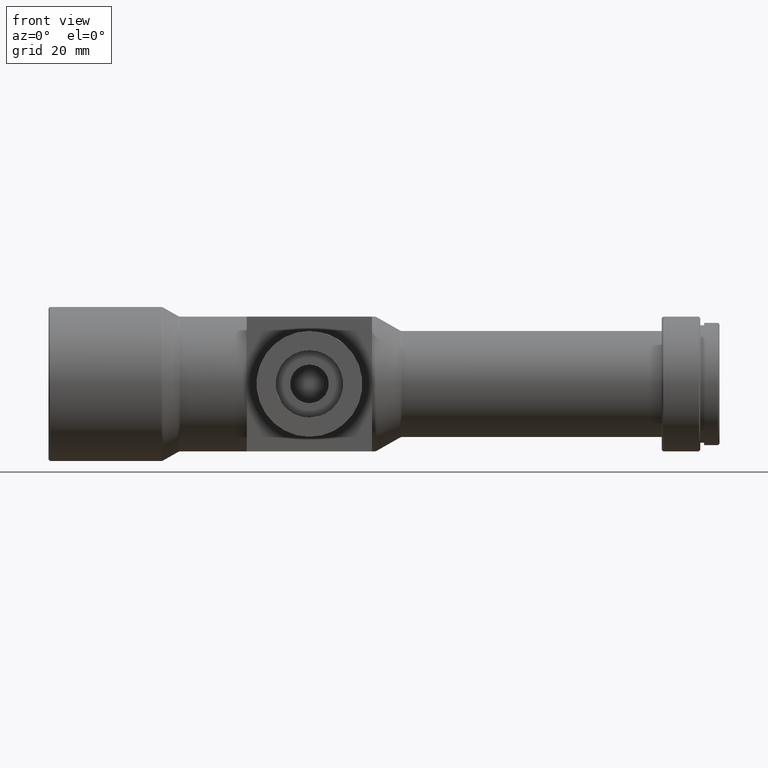
[diagram: clean part render]
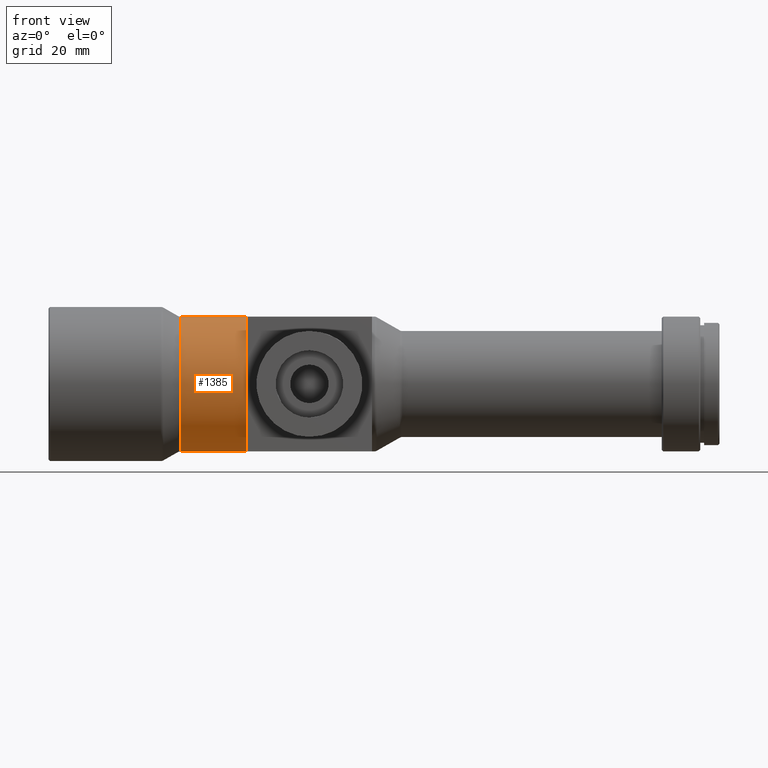
[diagram: same view with one face highlighted and labeled with its STEP entity id]
A machine part, front view. The second image highlights one B-rep face of the part: STEP entity #1385.
In plain terms, the highlighted cylindrical surface (partial cylindrical patch) has radius 14 mm, axis along (-1, -0, -0).
Its self-contained STEP definition (entity closure, byte-faithful):
#22 = CARTESIAN_POINT ( 'NONE',  ( 0.0000000000000000000, 0.0000000000000000000, 14.00000000000000000 ) ) ;
#26 = CARTESIAN_POINT ( 'NONE',  ( 27.39999999999999900, 0.0000000000000000000, 0.0000000000000000000 ) ) ;
#47 = EDGE_CURVE ( 'NONE', #542, #762, #419, .T. ) ;
#48 = DIRECTION ( 'NONE',  ( -1.000000000000000000, -0.0000000000000000000, -0.0000000000000000000 ) ) ;
#249 = DIRECTION ( 'NONE',  ( 1.000000000000000000, 0.0000000000000000000, 0.0000000000000000000 ) ) ;
#277 = CIRCLE ( 'NONE', #1046, 14.00000000000000000 ) ;
#313 = EDGE_CURVE ( 'NONE', #542, #1856, #277, .T. ) ;
#316 = VERTEX_POINT ( 'NONE', #850 ) ;
#332 = DIRECTION ( 'NONE',  ( 0.0000000000000000000, 0.0000000000000000000, 1.000000000000000000 ) ) ;
#419 = LINE ( 'NONE', #22, #564 ) ;
#432 = CYLINDRICAL_SURFACE ( 'NONE', #1100, 14.00000000000000000 ) ;
#454 = AXIS2_PLACEMENT_3D ( 'NONE', #26, #1075, #332 ) ;
#494 = EDGE_CURVE ( 'NONE', #553, #316, #755, .T. ) ;
#542 = VERTEX_POINT ( 'NONE', #1538 ) ;
#553 = VERTEX_POINT ( 'NONE', #943 ) ;
#557 = CARTESIAN_POINT ( 'NONE',  ( 41.20000000000001700, 0.0000000000000000000, 0.0000000000000000000 ) ) ;
#563 = EDGE_LOOP ( 'NONE', ( #1765, #1007, #1333, #901, #1166 ) ) ;
#564 = VECTOR ( 'NONE', #897, 1000.000000000000000 ) ;
#575 = DIRECTION ( 'NONE',  ( 1.000000000000000000, 0.0000000000000000000, 0.0000000000000000000 ) ) ;
#613 = CARTESIAN_POINT ( 'NONE',  ( 0.0000000000000000000, 0.0000000000000000000, 0.0000000000000000000 ) ) ;
#701 = DIRECTION ( 'NONE',  ( 0.0000000000000000000, 0.0000000000000000000, -1.000000000000000000 ) ) ;
#715 = VECTOR ( 'NONE', #48, 1000.000000000000000 ) ;
#742 = CIRCLE ( 'NONE', #1029, 14.00000000000000000 ) ;
#755 = LINE ( 'NONE', #1699, #715 ) ;
#762 = VERTEX_POINT ( 'NONE', #972 ) ;
#832 = CIRCLE ( 'NONE', #454, 14.00000000000000000 ) ;
#850 = CARTESIAN_POINT ( 'NONE',  ( 27.39999999999999900, 1.714505518806294600E-015, -14.00000000000000000 ) ) ;
#897 = DIRECTION ( 'NONE',  ( -1.000000000000000000, -0.0000000000000000000, -0.0000000000000000000 ) ) ;
#901 = ORIENTED_EDGE ( 'NONE', *, *, #47, .T. ) ;
#943 = CARTESIAN_POINT ( 'NONE',  ( 41.20000000000001700, 0.0000000000000000000, -14.00000000000000000 ) ) ;
#972 = CARTESIAN_POINT ( 'NONE',  ( 27.39999999999999900, 0.0000000000000000000, 14.00000000000000000 ) ) ;
#1007 = ORIENTED_EDGE ( 'NONE', *, *, #1925, .F. ) ;
#1013 = DIRECTION ( 'NONE',  ( 0.0000000000000000000, 0.0000000000000000000, -1.000000000000000000 ) ) ;
#1029 = AXIS2_PLACEMENT_3D ( 'NONE', #1153, #575, #1013 ) ;
#1046 = AXIS2_PLACEMENT_3D ( 'NONE', #557, #249, #701 ) ;
#1058 = FACE_OUTER_BOUND ( 'NONE', #563, .T. ) ;
#1075 = DIRECTION ( 'NONE',  ( -1.000000000000000000, -0.0000000000000000000, -0.0000000000000000000 ) ) ;
#1100 = AXIS2_PLACEMENT_3D ( 'NONE', #613, #1397, #1683 ) ;
#1153 = CARTESIAN_POINT ( 'NONE',  ( 41.20000000000001700, 0.0000000000000000000, 0.0000000000000000000 ) ) ;
#1166 = ORIENTED_EDGE ( 'NONE', *, *, #1374, .F. ) ;
#1333 = ORIENTED_EDGE ( 'NONE', *, *, #313, .F. ) ;
#1374 = EDGE_CURVE ( 'NONE', #316, #762, #832, .T. ) ;
#1385 = ADVANCED_FACE ( 'NONE', ( #1058 ), #432, .T. ) ;
#1397 = DIRECTION ( 'NONE',  ( -1.000000000000000000, -0.0000000000000000000, -0.0000000000000000000 ) ) ;
#1538 = CARTESIAN_POINT ( 'NONE',  ( 41.20000000000001700, 0.0000000000000000000, 14.00000000000000000 ) ) ;
#1683 = DIRECTION ( 'NONE',  ( 0.0000000000000000000, 0.0000000000000000000, 1.000000000000000000 ) ) ;
#1699 = CARTESIAN_POINT ( 'NONE',  ( 0.0000000000000000000, 1.714505518806294600E-015, -14.00000000000000000 ) ) ;
#1765 = ORIENTED_EDGE ( 'NONE', *, *, #494, .F. ) ;
#1816 = CARTESIAN_POINT ( 'NONE',  ( 41.20000000000001700, -14.00000000000000200, 0.0000000000000000000 ) ) ;
#1856 = VERTEX_POINT ( 'NONE', #1816 ) ;
#1925 = EDGE_CURVE ( 'NONE', #1856, #553, #742, .T. ) ;